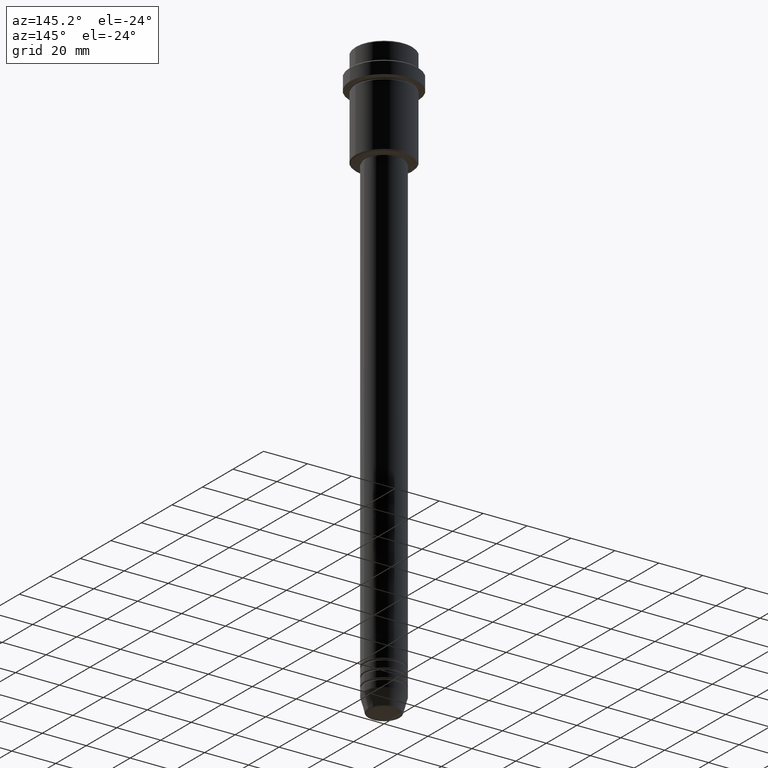
[diagram: clean part render]
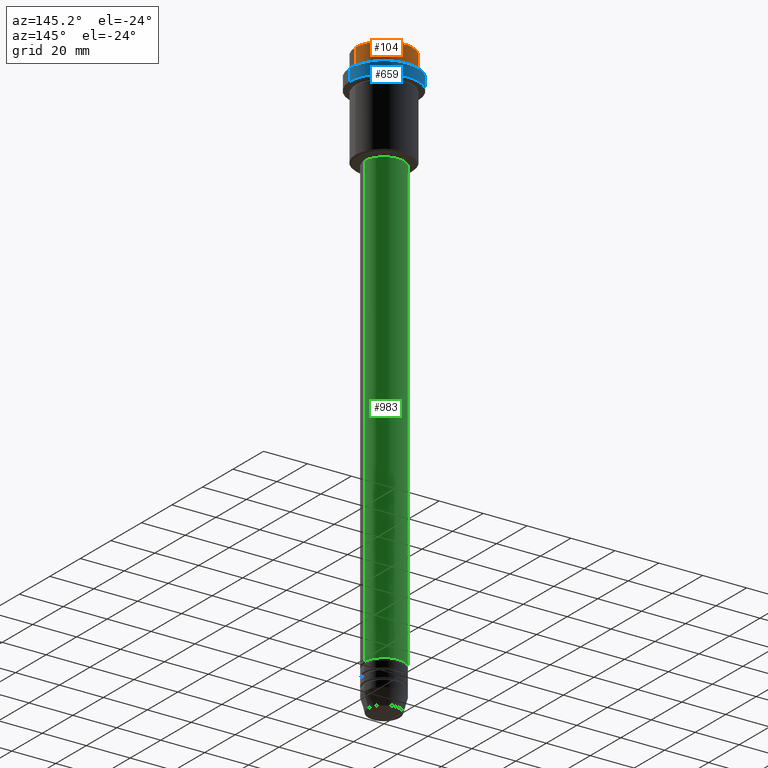
[diagram: same view with three faces highlighted in distinct colors, each labeled with its STEP entity id]
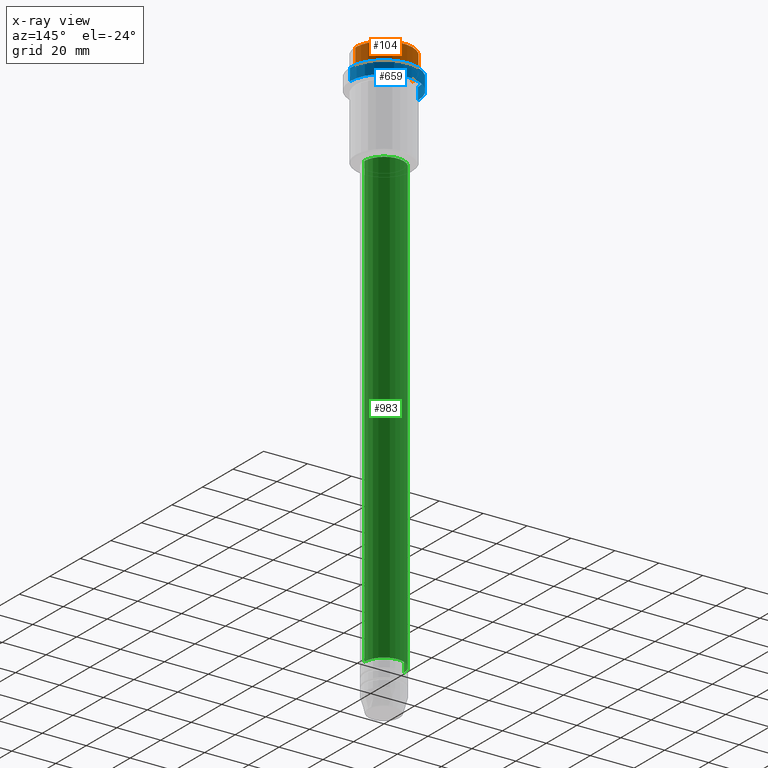
[diagram: x-ray of the same camera — body ghosted, the three highlighted faces saturated]
A machine part, auxiliary view with three faces highlighted in distinct colors.
The next image is the same camera in x-ray (body ghosted, the three faces saturated) — at least one of them is partly hidden behind the body in this view.
Their STEP definitions:

[orange] entity #104 — the highlighted cylindrical surface (edge-blend (fillet) strip) has radius 13 mm, axis along (-0, -0, 1).
#40 = LINE ( 'NONE', #474, #553 ) ;
#92 = DIRECTION ( 'NONE',  ( 1.000000000000000000, 0.000000000000000000, 0.000000000000000000 ) ) ;
#104 = ADVANCED_FACE ( 'NONE', ( #658 ), #446, .T. ) ;
#158 = ORIENTED_EDGE ( 'NONE', *, *, #543, .T. ) ;
#193 = ORIENTED_EDGE ( 'NONE', *, *, #914, .F. ) ;
#257 = VERTEX_POINT ( 'NONE', #974 ) ;
#261 = CARTESIAN_POINT ( 'NONE',  ( -12.99999999999999822, 1.592040838891558898E-15, -0.5000000000000037748 ) ) ;
#292 = DIRECTION ( 'NONE',  ( 1.000000000000000000, 0.000000000000000000, 0.000000000000000000 ) ) ;
#340 = CARTESIAN_POINT ( 'NONE',  ( 12.99999999999999822, 0.000000000000000000, -7.999999999999998224 ) ) ;
#351 = EDGE_LOOP ( 'NONE', ( #568, #1046, #158, #193 ) ) ;
#390 = LINE ( 'NONE', #1033, #1316 ) ;
#396 = EDGE_CURVE ( 'NONE', #257, #1332, #40, .T. ) ;
#446 = CYLINDRICAL_SURFACE ( 'NONE', #485, 12.99999999999999822 ) ;
#458 = DIRECTION ( 'NONE',  ( -0.000000000000000000, -0.000000000000000000, 1.000000000000000000 ) ) ;
#474 = CARTESIAN_POINT ( 'NONE',  ( -12.99999999999999822, 1.592040838891558898E-15, 0.000000000000000000 ) ) ;
#485 = AXIS2_PLACEMENT_3D ( 'NONE', #1417, #654, #92 ) ;
#490 = CIRCLE ( 'NONE', #1251, 12.99999999999999822 ) ;
#502 = VERTEX_POINT ( 'NONE', #1381 ) ;
#543 = EDGE_CURVE ( 'NONE', #1332, #502, #619, .T. ) ;
#553 = VECTOR ( 'NONE', #458, 1000.000000000000000 ) ;
#559 = CARTESIAN_POINT ( 'NONE',  ( 0.000000000000000000, 0.000000000000000000, -7.999999999999998224 ) ) ;
#568 = ORIENTED_EDGE ( 'NONE', *, *, #1187, .T. ) ;
#619 = CIRCLE ( 'NONE', #1358, 12.99999999999999822 ) ;
#654 = DIRECTION ( 'NONE',  ( -0.000000000000000000, -0.000000000000000000, 1.000000000000000000 ) ) ;
#658 = FACE_OUTER_BOUND ( 'NONE', #351, .T. ) ;
#914 = EDGE_CURVE ( 'NONE', #1192, #502, #390, .T. ) ;
#938 = DIRECTION ( 'NONE',  ( -0.000000000000000000, -0.000000000000000000, 1.000000000000000000 ) ) ;
#974 = CARTESIAN_POINT ( 'NONE',  ( -12.99999999999999822, 1.592040838891558898E-15, -7.999999999999998224 ) ) ;
#1033 = CARTESIAN_POINT ( 'NONE',  ( 12.99999999999999822, 0.000000000000000000, 0.000000000000000000 ) ) ;
#1046 = ORIENTED_EDGE ( 'NONE', *, *, #396, .T. ) ;
#1111 = DIRECTION ( 'NONE',  ( -0.000000000000000000, -0.000000000000000000, 1.000000000000000000 ) ) ;
#1117 = DIRECTION ( 'NONE',  ( 1.000000000000000000, 0.000000000000000000, 0.000000000000000000 ) ) ;
#1187 = EDGE_CURVE ( 'NONE', #1192, #257, #490, .T. ) ;
#1192 = VERTEX_POINT ( 'NONE', #340 ) ;
#1251 = AXIS2_PLACEMENT_3D ( 'NONE', #559, #1111, #1117 ) ;
#1283 = CARTESIAN_POINT ( 'NONE',  ( 0.000000000000000000, 0.000000000000000000, -0.5000000000000037748 ) ) ;
#1316 = VECTOR ( 'NONE', #938, 1000.000000000000000 ) ;
#1332 = VERTEX_POINT ( 'NONE', #261 ) ;
#1358 = AXIS2_PLACEMENT_3D ( 'NONE', #1283, #1373, #292 ) ;
#1373 = DIRECTION ( 'NONE',  ( 0.000000000000000000, 0.000000000000000000, -1.000000000000000000 ) ) ;
#1381 = CARTESIAN_POINT ( 'NONE',  ( 12.99999999999999822, 0.000000000000000000, -0.5000000000000037748 ) ) ;
#1417 = CARTESIAN_POINT ( 'NONE',  ( 0.000000000000000000, 0.000000000000000000, 0.000000000000000000 ) ) ;

[blue] entity #659 — the highlighted cylindrical surface (partial cylindrical patch) has radius 15.5 mm, axis along (-0, -0, 1).
#66 = EDGE_LOOP ( 'NONE', ( #1280, #305, #304, #837 ) ) ;
#79 = CIRCLE ( 'NONE', #1382, 15.50000000000000000 ) ;
#141 = CARTESIAN_POINT ( 'NONE',  ( -15.50000000000000000, 1.898202538678397557E-15, -15.00000000000000000 ) ) ;
#201 = EDGE_CURVE ( 'NONE', #1174, #727, #851, .T. ) ;
#203 = DIRECTION ( 'NONE',  ( 1.000000000000000000, 0.000000000000000000, 0.000000000000000000 ) ) ;
#223 = EDGE_CURVE ( 'NONE', #727, #1354, #986, .T. ) ;
#226 = CARTESIAN_POINT ( 'NONE',  ( 15.50000000000000000, 0.000000000000000000, -15.00000000000000000 ) ) ;
#304 = ORIENTED_EDGE ( 'NONE', *, *, #483, .T. ) ;
#305 = ORIENTED_EDGE ( 'NONE', *, *, #223, .T. ) ;
#315 = CARTESIAN_POINT ( 'NONE',  ( 0.000000000000000000, 0.000000000000000000, 0.000000000000000000 ) ) ;
#332 = DIRECTION ( 'NONE',  ( -0.000000000000000000, -0.000000000000000000, 1.000000000000000000 ) ) ;
#377 = CARTESIAN_POINT ( 'NONE',  ( 15.50000000000000000, 0.000000000000000000, -9.499999999999984013 ) ) ;
#413 = VECTOR ( 'NONE', #1083, 1000.000000000000000 ) ;
#416 = AXIS2_PLACEMENT_3D ( 'NONE', #315, #760, #1291 ) ;
#483 = EDGE_CURVE ( 'NONE', #1354, #987, #79, .T. ) ;
#659 = ADVANCED_FACE ( 'NONE', ( #1302 ), #972, .T. ) ;
#724 = DIRECTION ( 'NONE',  ( 1.000000000000000000, 0.000000000000000000, 0.000000000000000000 ) ) ;
#727 = VERTEX_POINT ( 'NONE', #141 ) ;
#734 = DIRECTION ( 'NONE',  ( 0.000000000000000000, 0.000000000000000000, -1.000000000000000000 ) ) ;
#760 = DIRECTION ( 'NONE',  ( -0.000000000000000000, -0.000000000000000000, 1.000000000000000000 ) ) ;
#837 = ORIENTED_EDGE ( 'NONE', *, *, #903, .F. ) ;
#851 = CIRCLE ( 'NONE', #1036, 15.50000000000000000 ) ;
#903 = EDGE_CURVE ( 'NONE', #1174, #987, #1162, .T. ) ;
#911 = DIRECTION ( 'NONE',  ( -0.000000000000000000, -0.000000000000000000, 1.000000000000000000 ) ) ;
#950 = CARTESIAN_POINT ( 'NONE',  ( -15.50000000000000000, 1.898202538678397557E-15, -9.499999999999984013 ) ) ;
#972 = CYLINDRICAL_SURFACE ( 'NONE', #416, 15.50000000000000000 ) ;
#986 = LINE ( 'NONE', #1403, #413 ) ;
#987 = VERTEX_POINT ( 'NONE', #377 ) ;
#1036 = AXIS2_PLACEMENT_3D ( 'NONE', #1411, #332, #203 ) ;
#1083 = DIRECTION ( 'NONE',  ( -0.000000000000000000, -0.000000000000000000, 1.000000000000000000 ) ) ;
#1151 = CARTESIAN_POINT ( 'NONE',  ( 15.50000000000000000, 0.000000000000000000, 0.000000000000000000 ) ) ;
#1162 = LINE ( 'NONE', #1151, #1184 ) ;
#1174 = VERTEX_POINT ( 'NONE', #226 ) ;
#1179 = CARTESIAN_POINT ( 'NONE',  ( 0.000000000000000000, 0.000000000000000000, -9.499999999999984013 ) ) ;
#1184 = VECTOR ( 'NONE', #911, 1000.000000000000000 ) ;
#1280 = ORIENTED_EDGE ( 'NONE', *, *, #201, .T. ) ;
#1291 = DIRECTION ( 'NONE',  ( 1.000000000000000000, 0.000000000000000000, 0.000000000000000000 ) ) ;
#1302 = FACE_OUTER_BOUND ( 'NONE', #66, .T. ) ;
#1354 = VERTEX_POINT ( 'NONE', #950 ) ;
#1382 = AXIS2_PLACEMENT_3D ( 'NONE', #1179, #734, #724 ) ;
#1403 = CARTESIAN_POINT ( 'NONE',  ( -15.50000000000000000, 1.898202538678397557E-15, 0.000000000000000000 ) ) ;
#1411 = CARTESIAN_POINT ( 'NONE',  ( 0.000000000000000000, 0.000000000000000000, -15.00000000000000000 ) ) ;

[green] entity #983 — the highlighted cylindrical surface (edge-blend (fillet) strip) has radius 9 mm, axis along (-0, -0, 1).
#67 = VERTEX_POINT ( 'NONE', #72 ) ;
#72 = CARTESIAN_POINT ( 'NONE',  ( -9.000000000000000000, 1.102182119232617714E-15, -250.9999999999998863 ) ) ;
#86 = CARTESIAN_POINT ( 'NONE',  ( 0.000000000000000000, 0.000000000000000000, 0.000000000000000000 ) ) ;
#94 = VERTEX_POINT ( 'NONE', #773 ) ;
#120 = VECTOR ( 'NONE', #1379, 1000.000000000000000 ) ;
#132 = CARTESIAN_POINT ( 'NONE',  ( -9.000000000000001776, 1.102182119232617911E-15, -46.00000000000001421 ) ) ;
#163 = DIRECTION ( 'NONE',  ( -0.000000000000000000, -0.000000000000000000, 1.000000000000000000 ) ) ;
#171 = DIRECTION ( 'NONE',  ( 1.000000000000000000, 0.000000000000000000, 0.000000000000000000 ) ) ;
#180 = CARTESIAN_POINT ( 'NONE',  ( 0.000000000000000000, 0.000000000000000000, -250.9999999999998863 ) ) ;
#184 = ORIENTED_EDGE ( 'NONE', *, *, #500, .T. ) ;
#215 = EDGE_LOOP ( 'NONE', ( #184, #1150, #1100, #1213 ) ) ;
#232 = AXIS2_PLACEMENT_3D ( 'NONE', #678, #1336, #1329 ) ;
#258 = EDGE_CURVE ( 'NONE', #842, #94, #469, .T. ) ;
#355 = CARTESIAN_POINT ( 'NONE',  ( 9.000000000000000000, 0.000000000000000000, -250.9999999999998863 ) ) ;
#368 = CIRCLE ( 'NONE', #738, 9.000000000000000000 ) ;
#469 = LINE ( 'NONE', #1001, #1203 ) ;
#491 = CARTESIAN_POINT ( 'NONE',  ( -9.000000000000001776, 1.102182119232617911E-15, 0.000000000000000000 ) ) ;
#500 = EDGE_CURVE ( 'NONE', #842, #67, #368, .T. ) ;
#520 = DIRECTION ( 'NONE',  ( -0.000000000000000000, -0.000000000000000000, 1.000000000000000000 ) ) ;
#535 = CIRCLE ( 'NONE', #232, 9.000000000000001776 ) ;
#609 = FACE_OUTER_BOUND ( 'NONE', #215, .T. ) ;
#621 = CYLINDRICAL_SURFACE ( 'NONE', #1228, 9.000000000000001776 ) ;
#678 = CARTESIAN_POINT ( 'NONE',  ( 0.000000000000000000, 0.000000000000000000, -46.00000000000001421 ) ) ;
#684 = DIRECTION ( 'NONE',  ( -0.000000000000000000, -0.000000000000000000, 1.000000000000000000 ) ) ;
#723 = LINE ( 'NONE', #491, #120 ) ;
#738 = AXIS2_PLACEMENT_3D ( 'NONE', #180, #163, #171 ) ;
#773 = CARTESIAN_POINT ( 'NONE',  ( 9.000000000000001776, 0.000000000000000000, -46.00000000000001421 ) ) ;
#774 = VERTEX_POINT ( 'NONE', #132 ) ;
#791 = EDGE_CURVE ( 'NONE', #94, #774, #535, .T. ) ;
#842 = VERTEX_POINT ( 'NONE', #355 ) ;
#958 = DIRECTION ( 'NONE',  ( 1.000000000000000000, 0.000000000000000000, 0.000000000000000000 ) ) ;
#983 = ADVANCED_FACE ( 'NONE', ( #609 ), #621, .T. ) ;
#1001 = CARTESIAN_POINT ( 'NONE',  ( 9.000000000000001776, 0.000000000000000000, 0.000000000000000000 ) ) ;
#1100 = ORIENTED_EDGE ( 'NONE', *, *, #791, .F. ) ;
#1150 = ORIENTED_EDGE ( 'NONE', *, *, #1289, .T. ) ;
#1203 = VECTOR ( 'NONE', #684, 1000.000000000000000 ) ;
#1213 = ORIENTED_EDGE ( 'NONE', *, *, #258, .F. ) ;
#1228 = AXIS2_PLACEMENT_3D ( 'NONE', #86, #520, #958 ) ;
#1289 = EDGE_CURVE ( 'NONE', #67, #774, #723, .T. ) ;
#1329 = DIRECTION ( 'NONE',  ( 1.000000000000000000, 0.000000000000000000, 0.000000000000000000 ) ) ;
#1336 = DIRECTION ( 'NONE',  ( -0.000000000000000000, -0.000000000000000000, 1.000000000000000000 ) ) ;
#1379 = DIRECTION ( 'NONE',  ( -0.000000000000000000, -0.000000000000000000, 1.000000000000000000 ) ) ;